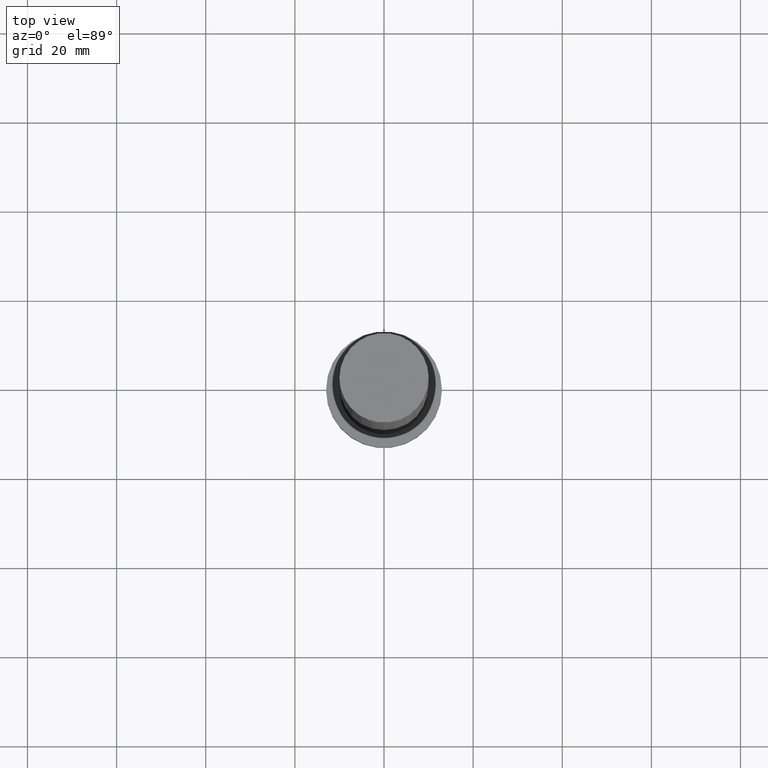
[diagram: clean part render]
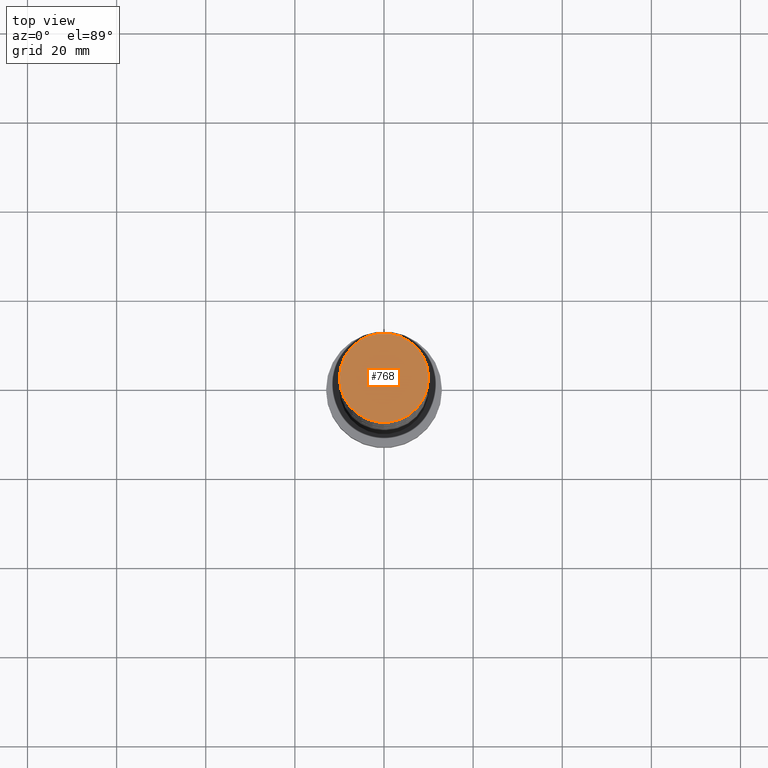
[diagram: same view with one face highlighted and labeled with its STEP entity id]
A machine part, top view. The second image highlights one B-rep face of the part: STEP entity #768.
In plain terms, the highlighted planar face has unit normal (0, 0, 1).
Its self-contained STEP definition (entity closure, byte-faithful):
#138 = VERTEX_POINT ( 'NONE', #1158 ) ;
#144 = ORIENTED_EDGE ( 'NONE', *, *, #515, .T. ) ;
#194 = CIRCLE ( 'NONE', #1300, 10.00000000000000178 ) ;
#201 = PLANE ( 'NONE',  #1531 ) ;
#266 = CARTESIAN_POINT ( 'NONE',  ( 0.000000000000000000, 0.000000000000000000, 160.0000000000000000 ) ) ;
#335 = DIRECTION ( 'NONE',  ( 0.000000000000000000, 0.000000000000000000, 1.000000000000000000 ) ) ;
#343 = CIRCLE ( 'NONE', #1266, 10.00000000000000178 ) ;
#387 = DIRECTION ( 'NONE',  ( 1.000000000000000000, 0.000000000000000000, 0.000000000000000000 ) ) ;
#392 = VERTEX_POINT ( 'NONE', #1441 ) ;
#515 = EDGE_CURVE ( 'NONE', #138, #392, #343, .T. ) ;
#634 = DIRECTION ( 'NONE',  ( 0.000000000000000000, 0.000000000000000000, 1.000000000000000000 ) ) ;
#695 = DIRECTION ( 'NONE',  ( 0.000000000000000000, 0.000000000000000000, 1.000000000000000000 ) ) ;
#768 = ADVANCED_FACE ( 'NONE', ( #1495 ), #201, .T. ) ;
#952 = ORIENTED_EDGE ( 'NONE', *, *, #1573, .T. ) ;
#1130 = EDGE_LOOP ( 'NONE', ( #952, #144 ) ) ;
#1158 = CARTESIAN_POINT ( 'NONE',  ( 10.00000000000000178, 1.224646799147353454E-15, 160.0000000000000000 ) ) ;
#1266 = AXIS2_PLACEMENT_3D ( 'NONE', #1418, #695, #387 ) ;
#1300 = AXIS2_PLACEMENT_3D ( 'NONE', #266, #634, #1538 ) ;
#1394 = CARTESIAN_POINT ( 'NONE',  ( 0.000000000000000000, 0.000000000000000000, 160.0000000000000000 ) ) ;
#1418 = CARTESIAN_POINT ( 'NONE',  ( 0.000000000000000000, 0.000000000000000000, 160.0000000000000000 ) ) ;
#1441 = CARTESIAN_POINT ( 'NONE',  ( -10.00000000000000178, 0.000000000000000000, 160.0000000000000000 ) ) ;
#1495 = FACE_OUTER_BOUND ( 'NONE', #1130, .T. ) ;
#1531 = AXIS2_PLACEMENT_3D ( 'NONE', #1394, #335, #1609 ) ;
#1538 = DIRECTION ( 'NONE',  ( 1.000000000000000000, 0.000000000000000000, 0.000000000000000000 ) ) ;
#1573 = EDGE_CURVE ( 'NONE', #392, #138, #194, .T. ) ;
#1609 = DIRECTION ( 'NONE',  ( 1.000000000000000000, 0.000000000000000000, -0.000000000000000000 ) ) ;